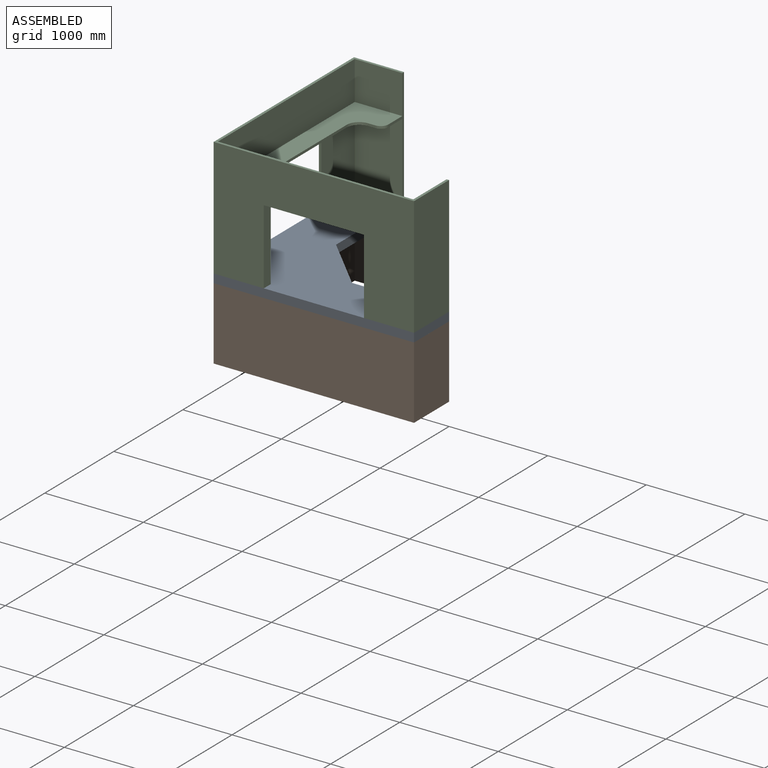
[diagram: assembled view]
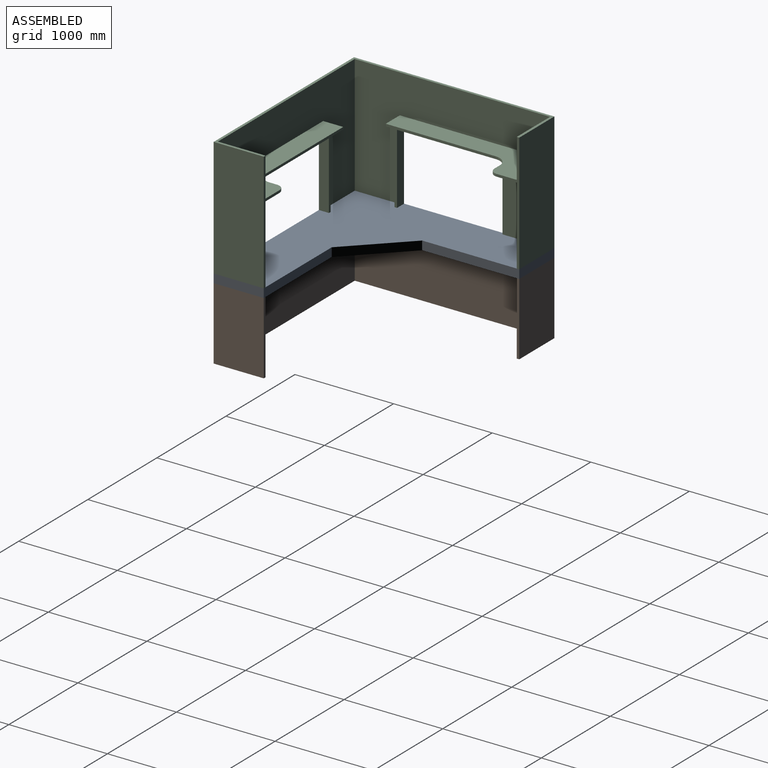
[diagram: assembled view, second angle]
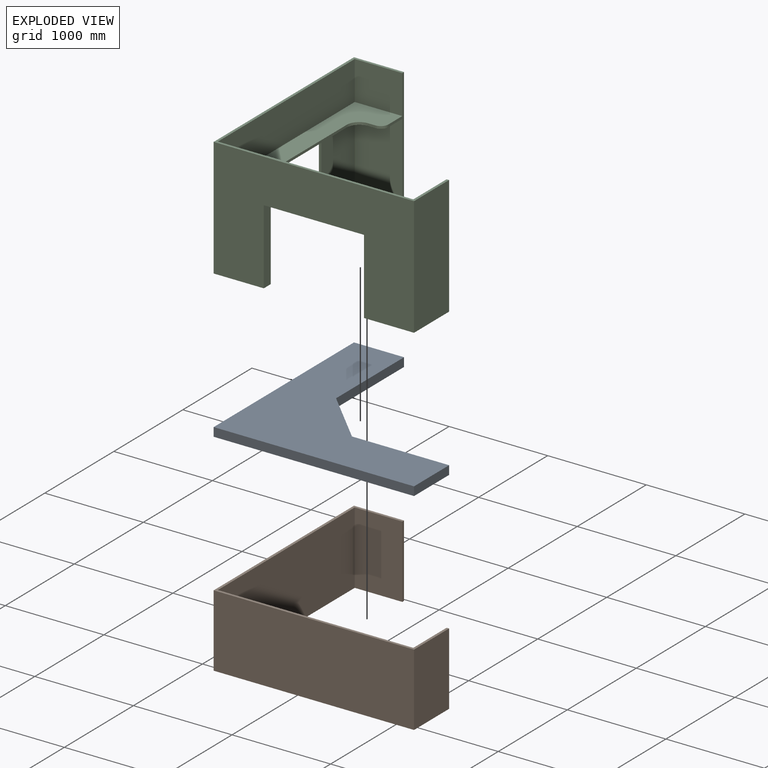
[diagram: exploded view]
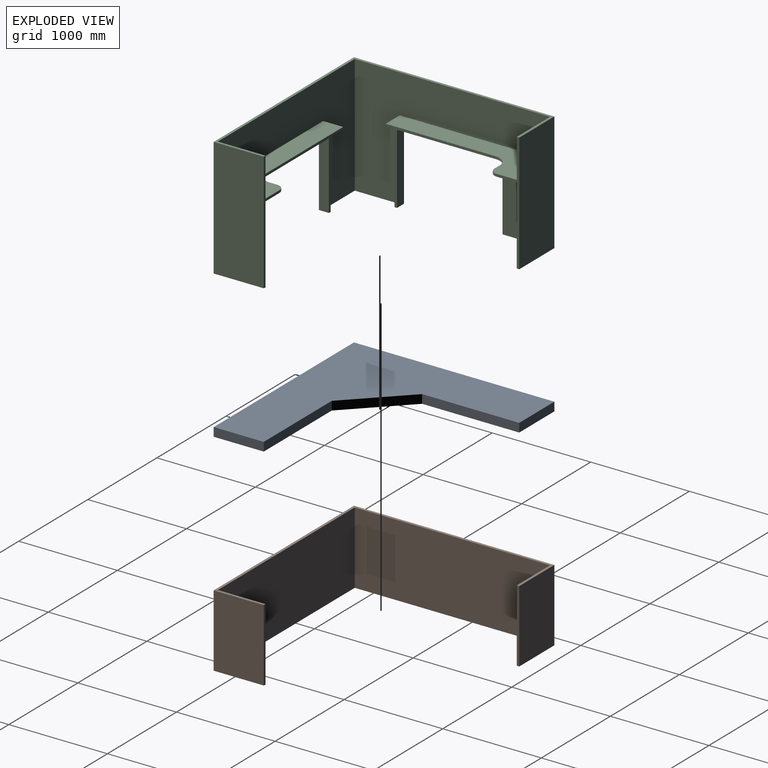
[diagram: exploded view, second angle]
ASSEMBLY  parts=3 mates=2
PART A: 9 faces, bbox 2032x2032x88.9 mm
  f0: plane 2032x88.9mm, normal (-1,0,0), area 180644.8mm2, adj f1,f6,f7,f8
  f1: plane 2032x88.9mm, normal (0,-1,0), area 180644.8mm2, adj f0,f2,f7,f8
  f2: plane 508x88.9mm, normal (1,0,0), area 45161.2mm2, adj f1,f3,f7,f8
  f3: plane 985.19x88.9mm, normal (0,1,0), area 87583.4mm2, adj f2,f4,f7,f8
  f4: plane 538.81x538.81mm, normal (0.71,0.71,0), area 67741.2mm2, adj f3,f5,f7,f8
  f5: plane 985.19x88.9mm, normal (1,0,0), area 87583.4mm2, adj f4,f6,f7,f8
  f6: plane 508x88.9mm, normal (0,1,0), area 45161.2mm2, adj f0,f5,f7,f8
  f7: plane 2032x2032mm, normal (0,0,1), area 1951606.2mm2, adj f0,f1,f2,f3,f4,f5,f6
  f8: plane 2032x2032mm, normal (0,0,-1), area 1951606.2mm2, adj f0,f1,f2,f3,f4,f5,f6
PART B: 12 faces, bbox 2032x2032x736.6 mm
  f0: plane 2032x736.6mm, normal (-1,0,0), area 1496771.2mm2, adj f1,f9,f10,f11
  f1: plane 2032x736.6mm, normal (0,-1,0), area 1496771.2mm2, adj f0,f2,f10,f11
  f2: plane 736.6x508mm, normal (1,0,0), area 374192.8mm2, adj f1,f3,f10,f11
  f3: plane 736.6x25.4mm, normal (0,1,0), area 18709.6mm2, adj f2,f4,f10,f11
  f4: plane 736.6x482.6mm, normal (-1,0,0), area 355483.2mm2, adj f3,f5,f10,f11
  f5: plane 1981.2x736.6mm, normal (0,1,0), area 1459351.9mm2, adj f4,f6,f10,f11
  f6: plane 1981.2x736.6mm, normal (1,0,0), area 1459351.9mm2, adj f5,f7,f10,f11
  f7: plane 736.6x482.6mm, normal (0,-1,0), area 355483.2mm2, adj f6,f8,f10,f11
  f8: plane 736.6x25.4mm, normal (1,0,0), area 18709.6mm2, adj f7,f9,f10,f11
  f9: plane 736.6x508mm, normal (0,1,0), area 374192.8mm2, adj f0,f8,f10,f11
  f10: plane 2032x2032mm, normal (0,0,1), area 127096.5mm2, adj f0,f1,f2,f3,f4,f5,f6,f7
  f11: plane 2032x2032mm, normal (0,0,-1), area 127096.5mm2, adj f0,f1,f2,f3,f4,f5,f6,f7
PART C: 40 faces, bbox 2032x2032x1206.5 mm
  f0: plane 1981.2x1206.5mm, normal (1,0,0), area 1151610.6mm2, adj f3,f5,f7,f8,f19,f36
  f1: plane 1524x482.6mm, normal (0,0,-1), area 388020.9mm2, adj f4,f14,f15,f24,f28,f29,f30,f31
  f2: plane 1524x482.6mm, normal (0,0,-1), area 388020.9mm2, adj f6,f11,f18,f23,f32,f33,f34,f35
  f3: plane 1981.2x1206.5mm, normal (0,1,0), area 1151610.6mm2, adj f0,f8,f13,f19,f27,f37
  f4: plane 1498.6x787.4mm, normal (1,0,0), area 405805.6mm2, adj f1,f14,f20,f24,f25,f26
  f5: plane 1524x482.6mm, normal (0,0,1), area 389956.4mm2, adj f0,f7,f15,f28,f29,f30,f31,f36
  f6: plane 787.4x482.6mm, normal (-1,0,0), area 379999.2mm2, adj f2,f10,f11,f18
  f7: plane 482.6x393.7mm, normal (0,-1,0), area 189999.6mm2, adj f0,f5,f15,f19
  f8: plane 508x508mm, normal (0,0,-1), area 29032.2mm2, adj f0,f3,f9,f12,f23,f24,f36,f37
  f9: plane 2032x1206.5mm, normal (-1,0,0), area 1677416mm2, adj f8,f12,f16,f19,f20,f24,f25,f26
  f10: plane 508x508mm, normal (0,0,-1), area 25161.2mm2, adj f6,f11,f12,f17,f18,f21
  f11: plane 1498.6x787.4mm, normal (0,1,0), area 405805.6mm2, adj f2,f6,f10,f21,f22,f23
  f12: plane 2032x1206.5mm, normal (0,-1,0), area 1677416mm2, adj f8,f9,f10,f17,f19,f21,f22,f23
  f13: plane 482.6x393.7mm, normal (-1,0,0), area 189999.6mm2, adj f3,f18,f19,f27
  f14: plane 787.4x482.6mm, normal (0,-1,0), area 379999.2mm2, adj f1,f4,f15,f20
  f15: plane 1206.5x228.6mm, normal (1,0,0), area 35806.4mm2, adj f1,f5,f7,f14,f16,f19,f20,f28
  f16: plane 1206.5x508mm, normal (0,1,0), area 612902mm2, adj f9,f15,f19,f20
  f17: plane 1206.5x508mm, normal (1,0,0), area 612902mm2, adj f10,f12,f18,f19
  f18: plane 1206.5x228.6mm, normal (0,1,0), area 35806.4mm2, adj f2,f6,f10,f13,f17,f19,f27,f35
  f19: plane 2032x2032mm, normal (0,0,1), area 127096.5mm2, adj f0,f3,f7,f9,f12,f13,f15,f16
  f20: plane 508x508mm, normal (0,0,-1), area 25161.2mm2, adj f4,f9,f14,f15,f16,f26
  f21: plane 762x25.4mm, normal (-1,0,0), area 19354.8mm2, adj f10,f11,f12,f22
  f22: plane 1016x25.4mm, normal (0,0,-1), area 25806.4mm2, adj f11,f12,f21,f23
  f23: plane 787.4x101.6mm, normal (1,0,0), area 79354.7mm2, adj f2,f8,f11,f12,f22,f38
  f24: plane 787.4x101.6mm, normal (0,1,0), area 79354.7mm2, adj f1,f4,f8,f9,f25,f39
  f25: plane 1016x25.4mm, normal (0,0,-1), area 25806.4mm2, adj f4,f9,f24,f26
  f26: plane 762x25.4mm, normal (0,-1,0), area 19354.8mm2, adj f4,f9,f20,f25
  f27: plane 1524x482.6mm, normal (0,0,1), area 389956.4mm2, adj f3,f13,f18,f32,f33,f34,f35,f37
  f28: cylinder r=76.2mm len=76.2mm, axis (0,0,1), area 3040.2mm2, adj f1,f5,f15,f29
  f29: plane 76.2x25.4mm, normal (0,-1,0), area 1935.5mm2, adj f1,f5,f28,f30
  f30: cylinder r=127mm len=127mm, axis (0,0,1), area 5067.1mm2, adj f1,f5,f29,f31
  f31: plane 1117.6x25.4mm, normal (1,0,0), area 28387mm2, adj f1,f5,f30,f36
  f32: plane 1117.6x25.4mm, normal (0,1,0), area 28387mm2, adj f2,f27,f33,f37
  f33: cylinder r=127mm len=127mm, axis (0,0,1), area 5067.1mm2, adj f2,f27,f32,f34
  f34: plane 76.2x25.4mm, normal (-1,0,0), area 1935.5mm2, adj f2,f27,f33,f35
  f35: cylinder r=76.2mm len=76.2mm, axis (0,0,1), area 3040.2mm2, adj f2,f18,f27,f34
  f36: plane 812.8x203.2mm, normal (0,-1,0), area 65161.2mm2, adj f0,f1,f5,f8,f31,f39
  f37: plane 812.8x203.2mm, normal (-1,0,0), area 65161.2mm2, adj f2,f3,f8,f27,f32,f38
  f38: plane 787.4x25.4mm, normal (0,1,0), area 20000mm2, adj f2,f8,f23,f37
  f39: plane 787.4x25.4mm, normal (1,0,0), area 20000mm2, adj f1,f8,f24,f36
PLACE A t=(1913.4,-233.88,1159.4)mm
PLACE B t=(1666.88,1571.61,422.8)mm
PLACE C t=(198.78,-1793.11,1248.3)mm
MATE planar A.f8 <-> B.f10  axis (0,0,-1) through (-782.45,-1147.81,1159.4)mm
MATE planar C.f8 <-> A.f7  axis (0,0,-1) through (-782.45,-1147.81,1248.3)mm
